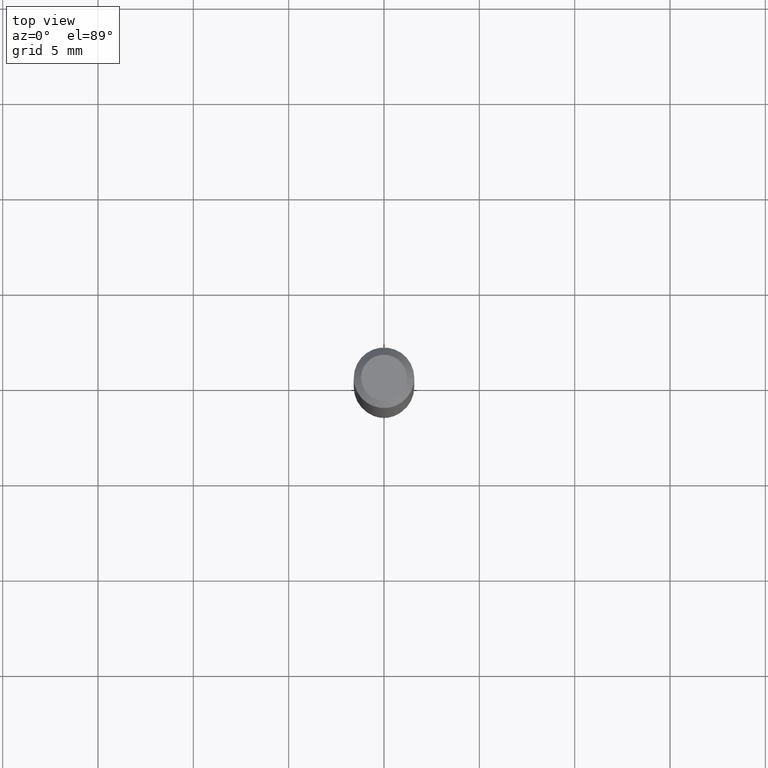
[diagram: clean part render]
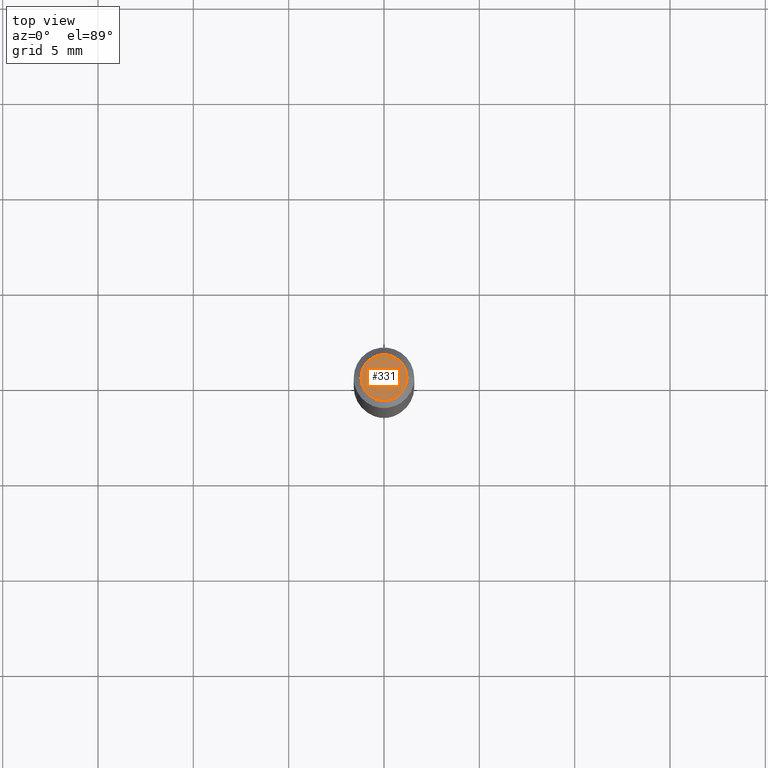
[diagram: same view with one face highlighted and labeled with its STEP entity id]
A machine part, top view. The second image highlights one B-rep face of the part: STEP entity #331.
In plain terms, the highlighted planar face has unit normal (0, -0, -1).
Its self-contained STEP definition (entity closure, byte-faithful):
#42 = CARTESIAN_POINT ( 'NONE',  ( -0.04750000000000000749, 3.578768372314221353E-16, 2.731847993664239060E-16 ) ) ;
#67 = CIRCLE ( 'NONE', #358, 0.04750000000000000749 ) ;
#77 = DIRECTION ( 'NONE',  ( 1.000000000000000000, -6.982962677686266711E-15, 4.852736867747365086E-29 ) ) ;
#81 = CARTESIAN_POINT ( 'NONE',  ( -6.680649051745406845E-45, 9.538196290434862081E-31, 2.731847993664263218E-16 ) ) ;
#87 = DIRECTION ( 'NONE',  ( -1.000000000000000000, 6.982962677686265922E-15, -4.876176775795935793E-29 ) ) ;
#90 = CARTESIAN_POINT ( 'NONE',  ( 0.04750000000000000749, -4.035134999187568762E-16, 2.731847993664288856E-16 ) ) ;
#97 = EDGE_CURVE ( 'NONE', #450, #206, #421, .T. ) ;
#164 = AXIS2_PLACEMENT_3D ( 'NONE', #392, #433, #87 ) ;
#182 = EDGE_CURVE ( 'NONE', #206, #450, #67, .T. ) ;
#206 = VERTEX_POINT ( 'NONE', #42 ) ;
#217 = ORIENTED_EDGE ( 'NONE', *, *, #182, .T. ) ;
#225 = DIRECTION ( 'NONE',  ( -2.445468806185136597E-29, 3.491481338843145583E-15, 1.000000000000000000 ) ) ;
#277 = FACE_OUTER_BOUND ( 'NONE', #333, .T. ) ;
#291 = DIRECTION ( 'NONE',  ( -2.445468806185136597E-29, 3.491481338843145583E-15, 1.000000000000000000 ) ) ;
#331 = ADVANCED_FACE ( 'NONE', ( #277 ), #432, .F. ) ;
#333 = EDGE_LOOP ( 'NONE', ( #217, #495 ) ) ;
#340 = CARTESIAN_POINT ( 'NONE',  ( -6.680649051745406845E-45, 9.538196290434862081E-31, 2.731847993664263218E-16 ) ) ;
#358 = AXIS2_PLACEMENT_3D ( 'NONE', #81, #225, #77 ) ;
#392 = CARTESIAN_POINT ( 'NONE',  ( 3.316907271900976589E-16, 0.04750000000000000749, -2.925296391183627249E-17 ) ) ;
#421 = CIRCLE ( 'NONE', #489, 0.04750000000000000749 ) ;
#432 = PLANE ( 'NONE',  #164 ) ;
#433 = DIRECTION ( 'NONE',  ( 2.438088387897960049E-29, -3.491481338843145188E-15, -1.000000000000000000 ) ) ;
#442 = DIRECTION ( 'NONE',  ( 1.000000000000000000, -6.982962677686266711E-15, 4.852736867747365086E-29 ) ) ;
#450 = VERTEX_POINT ( 'NONE', #90 ) ;
#489 = AXIS2_PLACEMENT_3D ( 'NONE', #340, #291, #442 ) ;
#495 = ORIENTED_EDGE ( 'NONE', *, *, #97, .T. ) ;